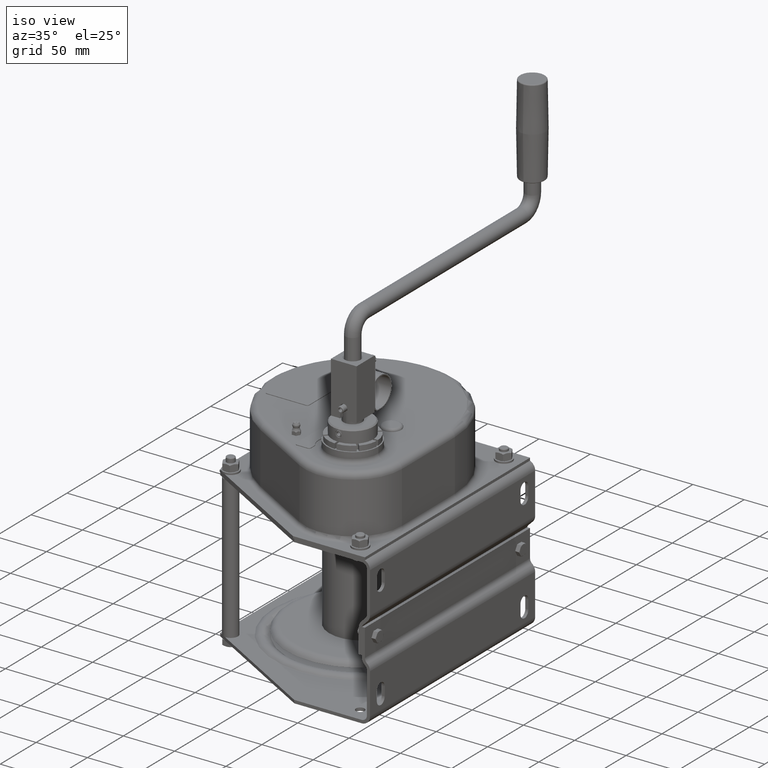
[diagram: clean part render]
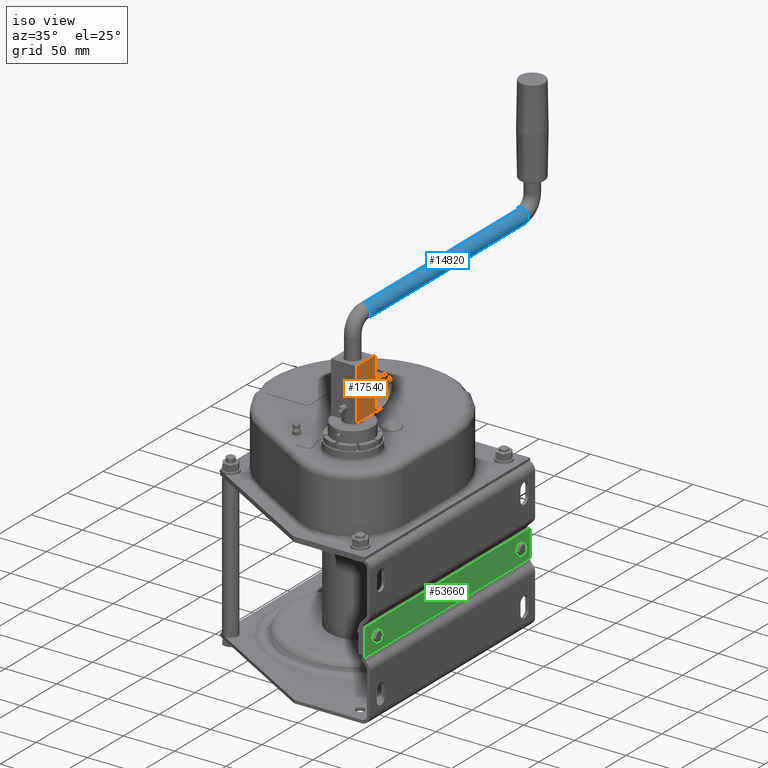
[diagram: same view with three faces highlighted in distinct colors, each labeled with its STEP entity id]
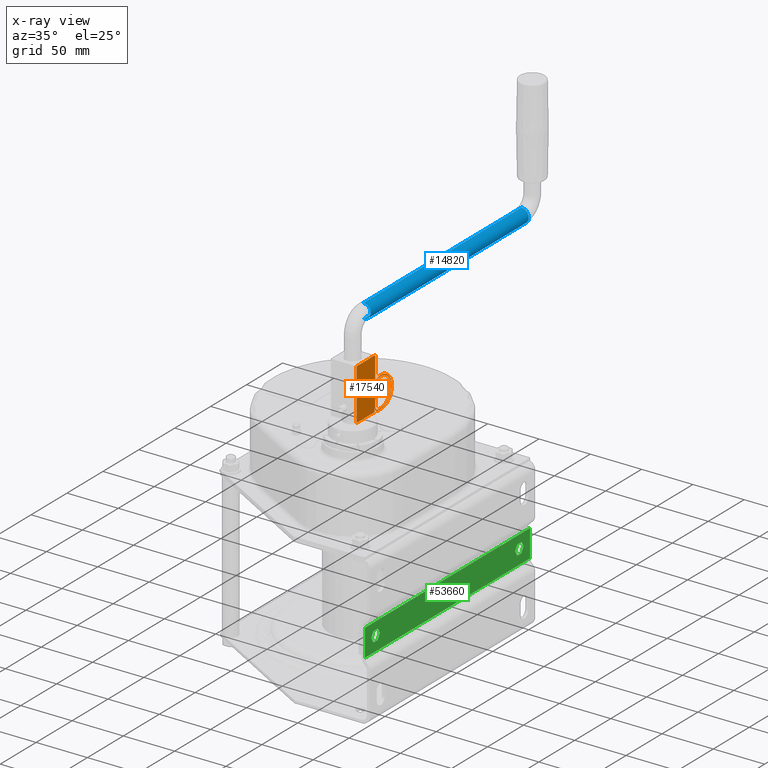
[diagram: x-ray of the same camera — body ghosted, the three highlighted faces saturated]
A machine part, iso view with three faces highlighted in distinct colors.
The next image is the same camera in x-ray (body ghosted, the three faces saturated) — at least one of them is partly hidden behind the body in this view.
Their STEP definitions:

[orange] entity #17540 — the highlighted planar face has unit normal (1, 0, 0).
#2890=CARTESIAN_POINT('',(15.,12.5,12.5));
#2900=VERTEX_POINT('',#2890);
#2930=CARTESIAN_POINT('',(-35.,12.5,12.5));
#2940=DIRECTION('',(1.,0.,0.));
#2950=VECTOR('',#2940,1.);
#2960=LINE('',#2930,#2950);
#2970=CARTESIAN_POINT('',(-35.,12.5,12.5));
#2980=VERTEX_POINT('',#2970);
#2990=EDGE_CURVE('',#2980,#2900,#2960,.T.);
#8670=CARTESIAN_POINT('',(15.,-12.5,12.5));
#8680=VERTEX_POINT('',#8670);
#8710=CARTESIAN_POINT('',(15.,-12.5,12.5));
#8720=DIRECTION('',(0.,1.,0.));
#8730=VECTOR('',#8720,1.);
#8740=LINE('',#8710,#8730);
#8750=EDGE_CURVE('',#8680,#2900,#8740,.T.);
#9820=CARTESIAN_POINT('',(14.5,-13.5,12.5));
#9830=VERTEX_POINT('',#9820);
#10380=CARTESIAN_POINT('',(-30.5,-13.5,12.5));
#10390=VERTEX_POINT('',#10380);
#10420=CARTESIAN_POINT('',(-8.69809383540609,-13.5,12.5));
#10430=DIRECTION('',(1.,0.,0.));
#10440=VECTOR('',#10430,1.);
#10450=LINE('',#10420,#10440);
#10460=EDGE_CURVE('',#10390,#9830,#10450,.T.);
#10950=CARTESIAN_POINT('',(14.5,-12.5,12.5));
#10960=VERTEX_POINT('',#10950);
#11060=CARTESIAN_POINT('',(14.5,-13.5,12.5));
#11070=DIRECTION('',(0.,1.,0.));
#11080=VECTOR('',#11070,1.);
#11090=LINE('',#11060,#11080);
#11100=EDGE_CURVE('',#9830,#10960,#11090,.T.);
#15800=CARTESIAN_POINT('',(-30.7,-12.5,12.5));
#15810=VERTEX_POINT('',#15800);
#15840=CARTESIAN_POINT('',(-30.7,-12.5,12.5));
#15850=DIRECTION('',(0.,-1.,0.));
#15860=VECTOR('',#15850,1.);
#15870=LINE('',#15840,#15860);
#15880=CARTESIAN_POINT('',(-30.7,-12.5040016012813,12.5));
#15890=VERTEX_POINT('',#15880);
#15900=EDGE_CURVE('',#15810,#15890,#15870,.T.);
#16040=CARTESIAN_POINT('',(-35.,-12.5,12.5));
#16050=DIRECTION('',(0.,1.,0.));
#16060=VECTOR('',#16050,1.);
#16070=LINE('',#16040,#16060);
#16080=CARTESIAN_POINT('',(-35.,-12.5,12.5));
#16090=VERTEX_POINT('',#16080);
#16100=EDGE_CURVE('',#16090,#2980,#16070,.T.);
#16570=CARTESIAN_POINT('',(-30.7,-12.5,12.5));
#16580=DIRECTION('',(0.,0.,1.));
#16590=DIRECTION('',(1.,0.,0.));
#16600=AXIS2_PLACEMENT_3D('',#16570,#16580,#16590);
#16610=PLANE('',#16600);
#16620=CARTESIAN_POINT('',(-35.,-12.5,12.5));
#16630=DIRECTION('',(1.,0.,0.));
#16640=VECTOR('',#16630,1.);
#16650=LINE('',#16620,#16640);
#16660=EDGE_CURVE('',#16090,#15810,#16650,.T.);
#16670=ORIENTED_EDGE('',*,*,#16660,.T.);
#16680=ORIENTED_EDGE('',*,*,#16100,.F.);
#16690=ORIENTED_EDGE('',*,*,#2990,.F.);
#16700=ORIENTED_EDGE('',*,*,#8750,.T.);
#16710=EDGE_CURVE('',#10960,#8680,#16650,.T.);
#16720=ORIENTED_EDGE('',*,*,#16710,.T.);
#16730=ORIENTED_EDGE('',*,*,#11100,.T.);
#16740=ORIENTED_EDGE('',*,*,#10460,.T.);
#16750=CARTESIAN_POINT('',(-30.5,-17.5,12.5));
#16760=DIRECTION('',(0.,0.,1.));
#16770=DIRECTION('',(1.,0.,0.));
#16780=AXIS2_PLACEMENT_3D('',#16750,#16760,#16770);
#16790=CIRCLE('',#16780,4.);
#16800=CARTESIAN_POINT('',(-34.5,-17.5,12.5));
#16810=VERTEX_POINT('',#16800);
#16820=EDGE_CURVE('',#10390,#16810,#16790,.T.);
#16830=ORIENTED_EDGE('',*,*,#16820,.F.);
#16840=CARTESIAN_POINT('',(-34.5,-21.5,12.5));
#16850=DIRECTION('',(0.,1.,0.));
#16860=VECTOR('',#16850,1.);
#16870=LINE('',#16840,#16860);
#16880=CARTESIAN_POINT('',(-34.5,-21.5,12.5));
#16890=VERTEX_POINT('',#16880);
#16900=EDGE_CURVE('',#16890,#16810,#16870,.T.);
#16910=ORIENTED_EDGE('',*,*,#16900,.T.);
#16920=CARTESIAN_POINT('',(-20.5,-21.5,12.5));
#16930=DIRECTION('',(0.,0.,1.));
#16940=DIRECTION('',(1.,0.,0.));
#16950=AXIS2_PLACEMENT_3D('',#16920,#16930,#16940);
#16960=CIRCLE('',#16950,14.);
#16970=CARTESIAN_POINT('',(-7.30067341785121,-16.8333333333332,12.5));
#16980=VERTEX_POINT('',#16970);
#16990=EDGE_CURVE('',#16890,#16980,#16960,.T.);
#17000=ORIENTED_EDGE('',*,*,#16990,.F.);
#17010=CARTESIAN_POINT('',(-12.0147186257615,-18.5,12.5));
#17020=DIRECTION('',(0.,0.,1.));
#17030=DIRECTION('',(1.,0.,0.));
#17040=AXIS2_PLACEMENT_3D('',#17010,#17020,#17030);
#17050=CIRCLE('',#17040,5.00000000000002);
#17060=CARTESIAN_POINT('',(-9.1680841265518,-14.3894438298558,12.5));
#17070=VERTEX_POINT('',#17060);
#17080=EDGE_CURVE('',#16980,#17070,#17050,.T.);
#17090=ORIENTED_EDGE('',*,*,#17080,.F.);
#17100=CARTESIAN_POINT('',(-8.61522117639822,-13.5559715725157,12.5));
#17110=DIRECTION('',(-0.552770798392587,-0.83333333333332,0.));
#17120=VECTOR('',#17110,1.);
#17130=LINE('',#17100,#17120);
#17140=CARTESIAN_POINT('',(-8.61522117639822,-13.5559715725157,12.5));
#17150=VERTEX_POINT('',#17140);
#17160=EDGE_CURVE('',#17150,#17070,#17130,.T.);
#17170=ORIENTED_EDGE('',*,*,#17160,.T.);
#17180=CARTESIAN_POINT('',(-12.0147186257615,-18.5,12.5));
#17190=DIRECTION('',(0.,0.,1.));
#17200=DIRECTION('',(1.,0.,0.));
#17210=AXIS2_PLACEMENT_3D('',#17180,#17190,#17200);
#17220=CIRCLE('',#17210,6.00000000000002);
#17230=CARTESIAN_POINT('',(-6.3578643762691,-16.5,12.5));
#17240=VERTEX_POINT('',#17230);
#17250=EDGE_CURVE('',#17240,#17150,#17220,.T.);
#17260=ORIENTED_EDGE('',*,*,#17250,.T.);
#17270=CARTESIAN_POINT('',(-20.5,-21.5,12.5));
#17280=DIRECTION('',(0.,0.,1.));
#17290=DIRECTION('',(1.,0.,0.));
#17300=AXIS2_PLACEMENT_3D('',#17270,#17280,#17290);
#17310=CIRCLE('',#17300,15.);
#17320=CARTESIAN_POINT('',(-35.5,-21.5,12.5));
#17330=VERTEX_POINT('',#17320);
#17340=EDGE_CURVE('',#17330,#17240,#17310,.T.);
#17350=ORIENTED_EDGE('',*,*,#17340,.T.);
#17360=CARTESIAN_POINT('',(-35.5,-21.5,12.5));
#17370=DIRECTION('',(0.,1.,0.));
#17380=VECTOR('',#17370,1.);
#17390=LINE('',#17360,#17380);
#17400=CARTESIAN_POINT('',(-35.5,-17.5,12.5));
#17410=VERTEX_POINT('',#17400);
#17420=EDGE_CURVE('',#17330,#17410,#17390,.T.);
#17430=ORIENTED_EDGE('',*,*,#17420,.F.);
#17440=CARTESIAN_POINT('',(-30.5,-17.5,12.5));
#17450=DIRECTION('',(0.,0.,1.));
#17460=DIRECTION('',(1.,0.,0.));
#17470=AXIS2_PLACEMENT_3D('',#17440,#17450,#17460);
#17480=CIRCLE('',#17470,5.);
#17490=EDGE_CURVE('',#15890,#17410,#17480,.T.);
#17500=ORIENTED_EDGE('',*,*,#17490,.T.);
#17510=ORIENTED_EDGE('',*,*,#15900,.T.);
#17520=EDGE_LOOP('',(#17510,#17500,#17430,#17350,#17260,#17170,#17090,
#17000,#16910,#16830,#16740,#16730,#16720,#16700,#16690,#16680,#16670));
#17530=FACE_OUTER_BOUND('',#17520,.T.);
#17540=ADVANCED_FACE('',(#17530),#16610,.T.);

[blue] entity #14820 — the highlighted cylindrical surface (edge-blend (fillet) strip) has radius 7 mm, axis along (0, 1, 0).
#14010=CARTESIAN_POINT('',(57.,-15.,8.57252759403147E-16));
#14020=VERTEX_POINT('',#14010);
#14110=CARTESIAN_POINT('',(43.,-15.,8.57252759403147E-16));
#14120=VERTEX_POINT('',#14110);
#14150=CARTESIAN_POINT('',(50.,-15.,0.));
#14160=DIRECTION('',(0.,-1.,0.));
#14170=DIRECTION('',(1.,0.,0.));
#14180=AXIS2_PLACEMENT_3D('',#14150,#14160,#14170);
#14190=CIRCLE('',#14180,7.);
#14300=EDGE_CURVE('',#14020,#14120,#14190,.T.);
#14430=CARTESIAN_POINT('',(57.,-15.,0.));
#14440=DIRECTION('',(0.,-1.,0.));
#14450=VECTOR('',#14440,1.);
#14460=LINE('',#14430,#14450);
#14470=CARTESIAN_POINT('',(57.,-235.,0.));
#14480=VERTEX_POINT('',#14470);
#14490=EDGE_CURVE('',#14020,#14480,#14460,.T.);
#14520=CARTESIAN_POINT('',(43.,-15.,8.57252759403147E-16));
#14530=DIRECTION('',(0.,-1.,0.));
#14540=VECTOR('',#14530,1.);
#14550=LINE('',#14520,#14540);
#14560=CARTESIAN_POINT('',(43.,-235.,8.57252759403147E-16));
#14570=VERTEX_POINT('',#14560);
#14580=EDGE_CURVE('',#14120,#14570,#14550,.T.);
#14600=CARTESIAN_POINT('',(50.,-235.,0.));
#14610=DIRECTION('',(0.,-1.,0.));
#14620=DIRECTION('',(1.,0.,0.));
#14630=AXIS2_PLACEMENT_3D('',#14600,#14610,#14620);
#14640=CIRCLE('',#14630,7.);
#14700=CARTESIAN_POINT('',(50.,-15.,0.));
#14710=DIRECTION('',(0.,-1.,0.));
#14720=DIRECTION('',(1.,0.,0.));
#14730=AXIS2_PLACEMENT_3D('',#14700,#14710,#14720);
#14740=CYLINDRICAL_SURFACE('',#14730,7.);
#14750=EDGE_CURVE('',#14480,#14570,#14640,.T.);
#14760=ORIENTED_EDGE('',*,*,#14750,.F.);
#14770=ORIENTED_EDGE('',*,*,#14580,.T.);
#14780=ORIENTED_EDGE('',*,*,#14300,.T.);
#14790=ORIENTED_EDGE('',*,*,#14490,.F.);
#14800=EDGE_LOOP('',(#14790,#14780,#14770,#14760));
#14810=FACE_OUTER_BOUND('',#14800,.T.);
#14820=ADVANCED_FACE('',(#14810),#14740,.T.);

[green] entity #53660 — the highlighted planar face has unit normal (1, 0, 0).
#34090=CARTESIAN_POINT('',(-95.,85.,97.5));
#34100=VERTEX_POINT('',#34090);
#34130=CARTESIAN_POINT('',(-95.,85.,97.5));
#34140=DIRECTION('',(0.,0.,-1.));
#34150=VECTOR('',#34140,1.);
#34160=LINE('',#34130,#34150);
#34170=CARTESIAN_POINT('',(-95.,85.,-132.5));
#34180=VERTEX_POINT('',#34170);
#34190=EDGE_CURVE('',#34100,#34180,#34160,.T.);
#51450=CARTESIAN_POINT('',(-95.,85.,-132.5));
#51460=DIRECTION('',(0.,-1.,0.));
#51470=VECTOR('',#51460,1.);
#51480=LINE('',#51450,#51470);
#51490=CARTESIAN_POINT('',(-95.,58.3137084989848,-132.5));
#51500=VERTEX_POINT('',#51490);
#51510=EDGE_CURVE('',#34180,#51500,#51480,.T.);
#52430=CARTESIAN_POINT('',(-95.,48.5158967698106,-132.5));
#52440=DIRECTION('',(-1.,0.,0.));
#52450=DIRECTION('',(0.,0.,1.));
#52460=AXIS2_PLACEMENT_3D('',#52430,#52440,#52450);
#52470=PLANE('',#52460);
#52480=ORIENTED_EDGE('',*,*,#51510,.T.);
#52490=ORIENTED_EDGE('',*,*,#34190,.T.);
#52500=CARTESIAN_POINT('',(-95.,-45.2230404563177,97.5));
#52510=DIRECTION('',(0.,1.,-6.12303176911189E-17));
#52520=VECTOR('',#52510,1.);
#52530=LINE('',#52500,#52520);
#52540=CARTESIAN_POINT('',(-95.,58.3137084989848,97.5));
#52550=VERTEX_POINT('',#52540);
#52560=EDGE_CURVE('',#52550,#34100,#52530,.T.);
#52570=ORIENTED_EDGE('',*,*,#52560,.T.);
#52580=CARTESIAN_POINT('',(-95.,58.3137084989848,-107.281534200716));
#52590=DIRECTION('',(0.,0.,1.));
#52600=VECTOR('',#52590,1.);
#52610=LINE('',#52580,#52600);
#52620=EDGE_CURVE('',#51500,#52550,#52610,.T.);
#52630=ORIENTED_EDGE('',*,*,#52620,.T.);
#52640=EDGE_LOOP('',(#52630,#52570,#52490,#52480));
#52650=FACE_OUTER_BOUND('',#52640,.T.);
#52660=CARTESIAN_POINT('',(-95.,145.,46.4156081756485));
#52670=DIRECTION('',(0.,0.866025403784439,-0.5));
#52680=VECTOR('',#52670,1.);
#52690=LINE('',#52660,#52680);
#52700=CARTESIAN_POINT('',(-95.,72.5,88.2735026918963));
#52710=VERTEX_POINT('',#52700);
#52720=CARTESIAN_POINT('',(-95.,77.5,85.3867513459481));
#52730=VERTEX_POINT('',#52720);
#52740=EDGE_CURVE('',#52710,#52730,#52690,.T.);
#52750=ORIENTED_EDGE('',*,*,#52740,.F.);
#52760=CARTESIAN_POINT('',(-95.,77.4999999999999,-96.1569234220613));
#52770=DIRECTION('',(-0.,-3.0767402982137E-16,-1.));
#52780=VECTOR('',#52770,1.);
#52790=LINE('',#52760,#52780);
#52800=CARTESIAN_POINT('',(-95.,77.5,79.6132486540519));
#52810=VERTEX_POINT('',#52800);
#52820=EDGE_CURVE('',#52730,#52810,#52790,.T.);
#52830=ORIENTED_EDGE('',*,*,#52820,.F.);
#52840=CARTESIAN_POINT('',(-95.,145.,118.584391824351));
#52850=DIRECTION('',(-0.,-0.866025403784439,-0.5));
#52860=VECTOR('',#52850,1.);
#52870=LINE('',#52840,#52860);
#52880=CARTESIAN_POINT('',(-95.,72.5,76.7264973081037));
#52890=VERTEX_POINT('',#52880);
#52900=EDGE_CURVE('',#52810,#52890,#52870,.T.);
#52910=ORIENTED_EDGE('',*,*,#52900,.F.);
#52920=CARTESIAN_POINT('',(-95.,145.,34.8686027918559));
#52930=DIRECTION('',(0.,-0.866025403784439,0.5));
#52940=VECTOR('',#52930,1.);
#52950=LINE('',#52920,#52940);
#52960=CARTESIAN_POINT('',(-95.,67.5,79.6132486540519));
#52970=VERTEX_POINT('',#52960);
#52980=EDGE_CURVE('',#52890,#52970,#52950,.T.);
#52990=ORIENTED_EDGE('',*,*,#52980,.F.);
#53000=CARTESIAN_POINT('',(-95.,67.4999999999999,-96.1569234220613));
#53010=DIRECTION('',(0.,3.0767402982137E-16,1.));
#53020=VECTOR('',#53010,1.);
#53030=LINE('',#53000,#53020);
#53040=CARTESIAN_POINT('',(-95.,67.5,85.3867513459481));
#53050=VERTEX_POINT('',#53040);
#53060=EDGE_CURVE('',#52970,#53050,#53030,.T.);
#53070=ORIENTED_EDGE('',*,*,#53060,.F.);
#53080=CARTESIAN_POINT('',(-95.,145.,130.131397208144));
#53090=DIRECTION('',(0.,0.866025403784439,0.5));
#53100=VECTOR('',#53090,1.);
#53110=LINE('',#53080,#53100);
#53120=EDGE_CURVE('',#53050,#52710,#53110,.T.);
#53130=ORIENTED_EDGE('',*,*,#53120,.F.);
#53140=EDGE_LOOP('',(#53130,#53070,#52990,#52910,#52830,#52750));
#53150=FACE_BOUND('',#53140,.T.);
#53160=CARTESIAN_POINT('',(-95.,67.5,-96.1569234220613));
#53170=DIRECTION('',(0.,3.0767402982137E-16,1.));
#53180=VECTOR('',#53170,1.);
#53190=LINE('',#53160,#53180);
#53200=CARTESIAN_POINT('',(-95.,67.5,-120.386751345948));
#53210=VERTEX_POINT('',#53200);
#53220=CARTESIAN_POINT('',(-95.,67.5,-114.613248654052));
#53230=VERTEX_POINT('',#53220);
#53240=EDGE_CURVE('',#53210,#53230,#53190,.T.);
#53250=ORIENTED_EDGE('',*,*,#53240,.F.);
#53260=CARTESIAN_POINT('',(-95.,145.,-69.868602791856));
#53270=DIRECTION('',(0.,0.866025403784439,0.5));
#53280=VECTOR('',#53270,1.);
#53290=LINE('',#53260,#53280);
#53300=CARTESIAN_POINT('',(-95.,72.5,-111.726497308104));
#53310=VERTEX_POINT('',#53300);
#53320=EDGE_CURVE('',#53230,#53310,#53290,.T.);
#53330=ORIENTED_EDGE('',*,*,#53320,.F.);
#53340=CARTESIAN_POINT('',(-95.,145.,-153.584391824352));
#53350=DIRECTION('',(0.,0.866025403784439,-0.5));
#53360=VECTOR('',#53350,1.);
#53370=LINE('',#53340,#53360);
#53380=CARTESIAN_POINT('',(-95.,77.5,-114.613248654052));
#53390=VERTEX_POINT('',#53380);
#53400=EDGE_CURVE('',#53310,#53390,#53370,.T.);
#53410=ORIENTED_EDGE('',*,*,#53400,.F.);
#53420=CARTESIAN_POINT('',(-95.,77.5,-96.1569234220613));
#53430=DIRECTION('',(-0.,-3.0767402982137E-16,-1.));
#53440=VECTOR('',#53430,1.);
#53450=LINE('',#53420,#53440);
#53460=CARTESIAN_POINT('',(-95.,77.5,-120.386751345948));
#53470=VERTEX_POINT('',#53460);
#53480=EDGE_CURVE('',#53390,#53470,#53450,.T.);
#53490=ORIENTED_EDGE('',*,*,#53480,.F.);
#53500=CARTESIAN_POINT('',(-95.,145.,-81.4156081756485));
#53510=DIRECTION('',(-0.,-0.866025403784439,-0.5));
#53520=VECTOR('',#53510,1.);
#53530=LINE('',#53500,#53520);
#53540=CARTESIAN_POINT('',(-95.,72.5,-123.273502691896));
#53550=VERTEX_POINT('',#53540);
#53560=EDGE_CURVE('',#53470,#53550,#53530,.T.);
#53570=ORIENTED_EDGE('',*,*,#53560,.F.);
#53580=CARTESIAN_POINT('',(-95.,145.,-165.131397208144));
#53590=DIRECTION('',(0.,-0.866025403784439,0.5));
#53600=VECTOR('',#53590,1.);
#53610=LINE('',#53580,#53600);
#53620=EDGE_CURVE('',#53550,#53210,#53610,.T.);
#53630=ORIENTED_EDGE('',*,*,#53620,.F.);
#53640=EDGE_LOOP('',(#53630,#53570,#53490,#53410,#53330,#53250));
#53650=FACE_BOUND('',#53640,.T.);
#53660=ADVANCED_FACE('',(#52650,#53150,#53650),#52470,.T.);